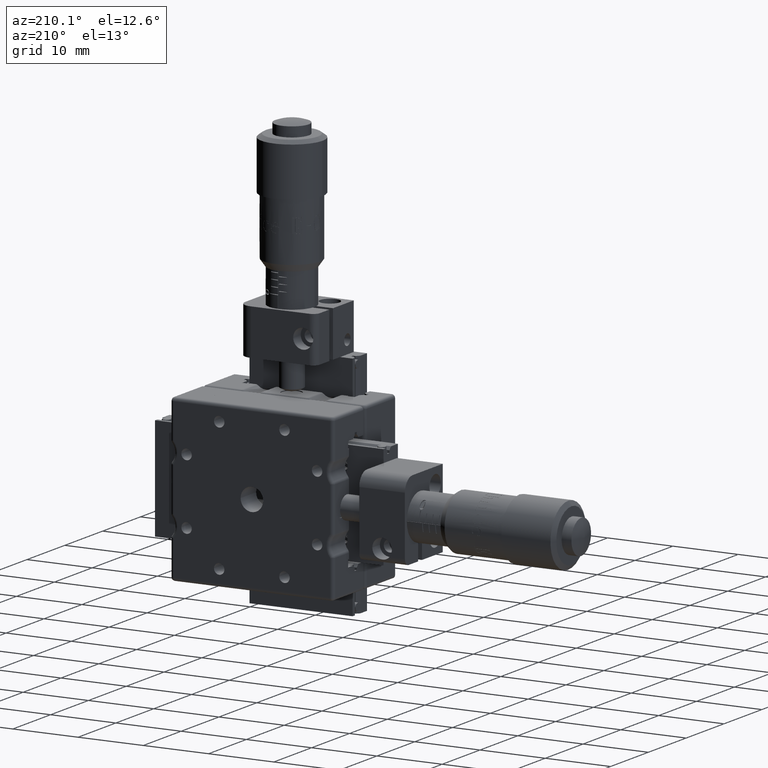
[diagram: clean part render]
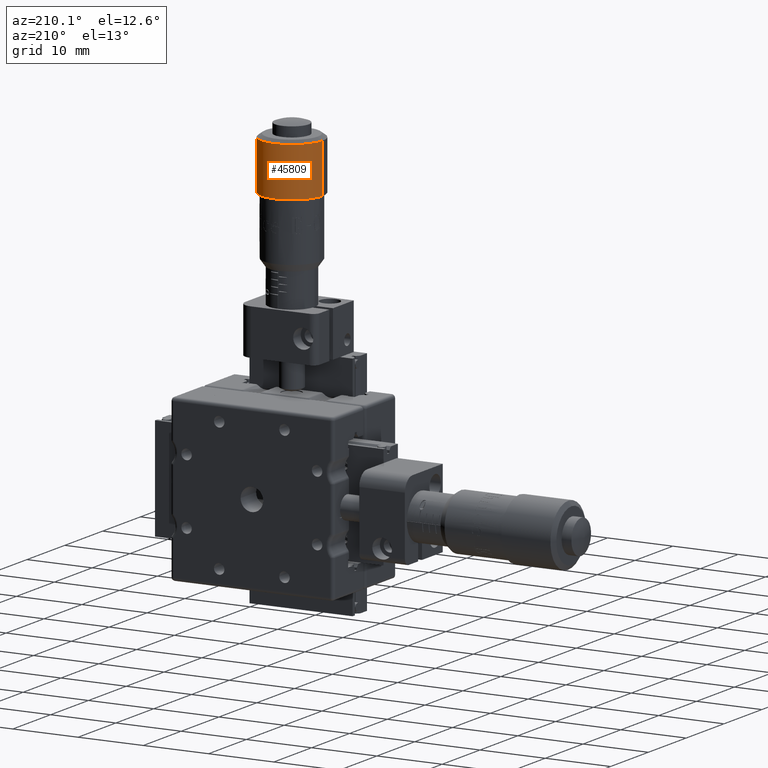
[diagram: same view with one face highlighted and labeled with its STEP entity id]
A machine part, auxiliary view. The second image highlights one B-rep face of the part: STEP entity #45809.
In plain terms, the highlighted cylindrical surface (edge-blend (fillet) strip) has radius 4.7 mm, axis along (0, 0, 1).
Its self-contained STEP definition (entity closure, byte-faithful):
#617 = CARTESIAN_POINT ( 'NONE',  ( 2.690657949395229800E-014, 6.199999999999897100, 47.19746993000000400 ) ) ;
#4415 = CARTESIAN_POINT ( 'NONE',  ( 4.697990897784884500, 6.062589940940532600, 47.19746993000000400 ) ) ;
#4841 = DIRECTION ( 'NONE',  ( 1.110223024626044000E-016, 1.762506864451433100E-016, 1.000000000000000000 ) ) ;
#5600 = DIRECTION ( 'NONE',  ( 0.9995725314435850400, -0.02923618277858828700, 0.0000000000000000000 ) ) ;
#6134 = CARTESIAN_POINT ( 'NONE',  ( -4.697990897784822400, 6.337410059059276800, 47.19746993000000400 ) ) ;
#7159 = LINE ( 'NONE', #67233, #63324 ) ;
#7407 = DIRECTION ( 'NONE',  ( 1.110223024626044000E-016, 1.762506864451433100E-016, 1.000000000000000000 ) ) ;
#7922 = ORIENTED_EDGE ( 'NONE', *, *, #27345, .T. ) ;
#8219 = VERTEX_POINT ( 'NONE', #6134 ) ;
#8926 = CIRCLE ( 'NONE', #58691, 4.700000000000008200 ) ;
#9528 = ORIENTED_EDGE ( 'NONE', *, *, #66100, .T. ) ;
#9653 = CYLINDRICAL_SURFACE ( 'NONE', #55723, 4.700000000000008200 ) ;
#13409 = EDGE_LOOP ( 'NONE', ( #9528, #7922, #56972, #55364 ) ) ;
#17208 = CIRCLE ( 'NONE', #60226, 4.700000000000008200 ) ;
#17345 = FACE_OUTER_BOUND ( 'NONE', #13409, .T. ) ;
#18140 = EDGE_CURVE ( 'NONE', #51637, #8219, #17208, .T. ) ;
#22328 = DIRECTION ( 'NONE',  ( 1.110223024626044000E-016, 1.762506864451433100E-016, 1.000000000000000000 ) ) ;
#23799 = CARTESIAN_POINT ( 'NONE',  ( 3.137747072165624400E-014, 6.199999999999917600, 83.73849299920763700 ) ) ;
#26778 = CARTESIAN_POINT ( 'NONE',  ( 4.697990897784883700, 6.062589940940534400, 39.69746993000000400 ) ) ;
#27345 = EDGE_CURVE ( 'NONE', #55945, #8219, #7159, .T. ) ;
#28073 = DIRECTION ( 'NONE',  ( 0.9995725314435850400, -0.02923618277858828700, 0.0000000000000000000 ) ) ;
#39711 = LINE ( 'NONE', #53580, #47300 ) ;
#42894 = VERTEX_POINT ( 'NONE', #26778 ) ;
#44702 = CARTESIAN_POINT ( 'NONE',  ( 2.596848604361885800E-014, 6.199999999999898900, 39.69746993000000400 ) ) ;
#45809 = ADVANCED_FACE ( 'NONE', ( #17345 ), #9653, .T. ) ;
#47300 = VECTOR ( 'NONE', #4841, 1000.000000000000000 ) ;
#51637 = VERTEX_POINT ( 'NONE', #4415 ) ;
#53580 = CARTESIAN_POINT ( 'NONE',  ( 4.697990897784889000, 6.062589940940552100, 83.73849299920763700 ) ) ;
#55105 = DIRECTION ( 'NONE',  ( 1.110223024626044000E-016, 1.762506864451433100E-016, 1.000000000000000000 ) ) ;
#55364 = ORIENTED_EDGE ( 'NONE', *, *, #57512, .F. ) ;
#55723 = AXIS2_PLACEMENT_3D ( 'NONE', #23799, #7407, #62092 ) ;
#55945 = VERTEX_POINT ( 'NONE', #66534 ) ;
#56972 = ORIENTED_EDGE ( 'NONE', *, *, #18140, .F. ) ;
#57512 = EDGE_CURVE ( 'NONE', #42894, #51637, #39711, .T. ) ;
#58691 = AXIS2_PLACEMENT_3D ( 'NONE', #44702, #22328, #28073 ) ;
#60226 = AXIS2_PLACEMENT_3D ( 'NONE', #617, #65278, #5600 ) ;
#62092 = DIRECTION ( 'NONE',  ( 0.9995725314435850400, -0.02923618277858828700, 0.0000000000000000000 ) ) ;
#63324 = VECTOR ( 'NONE', #55105, 1000.000000000000000 ) ;
#65278 = DIRECTION ( 'NONE',  ( 1.110223024626044000E-016, 1.762506864451433100E-016, 1.000000000000000000 ) ) ;
#66100 = EDGE_CURVE ( 'NONE', #42894, #55945, #8926, .T. ) ;
#66534 = CARTESIAN_POINT ( 'NONE',  ( -4.697990897784823300, 6.337410059059276800, 39.69746993000000400 ) ) ;
#67233 = CARTESIAN_POINT ( 'NONE',  ( -4.697990897784826800, 6.337410059059283000, 83.73849299920763700 ) ) ;